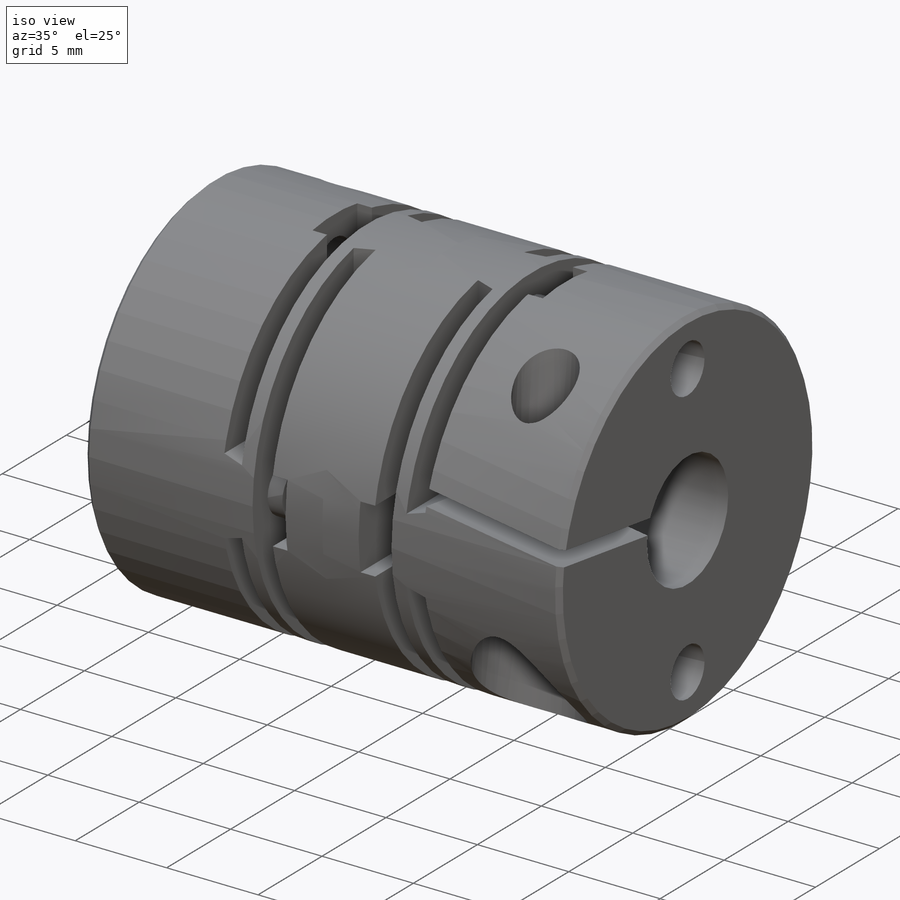
[diagram: iso view]
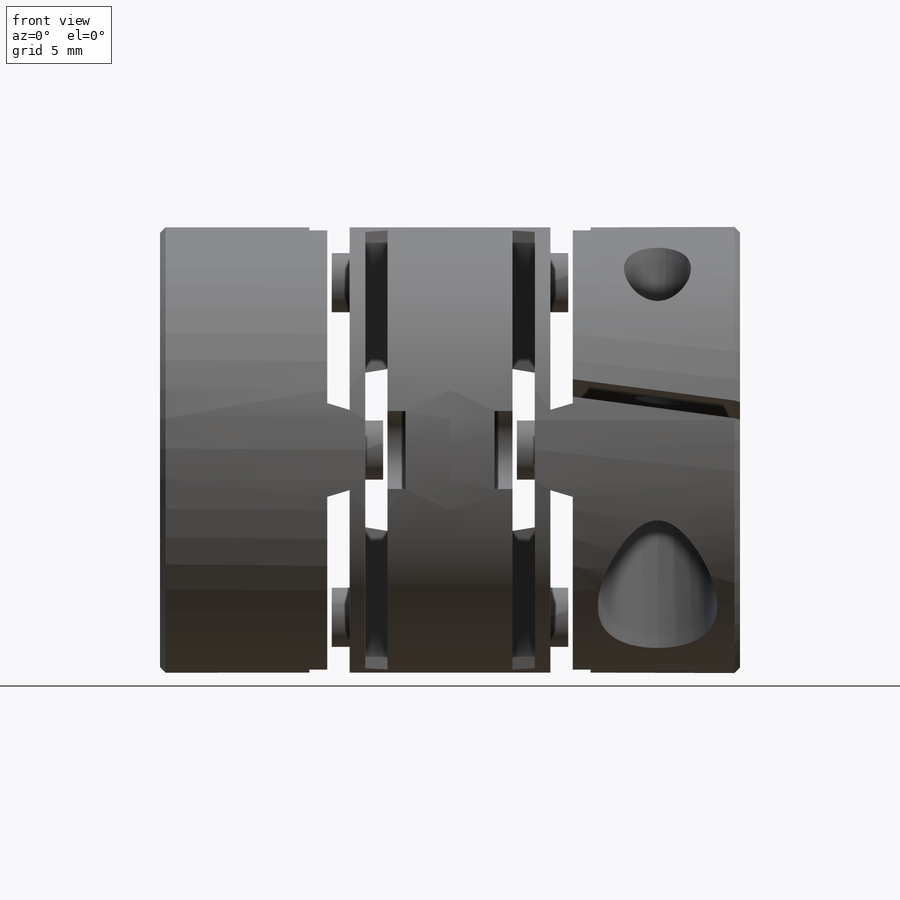
[diagram: front view]
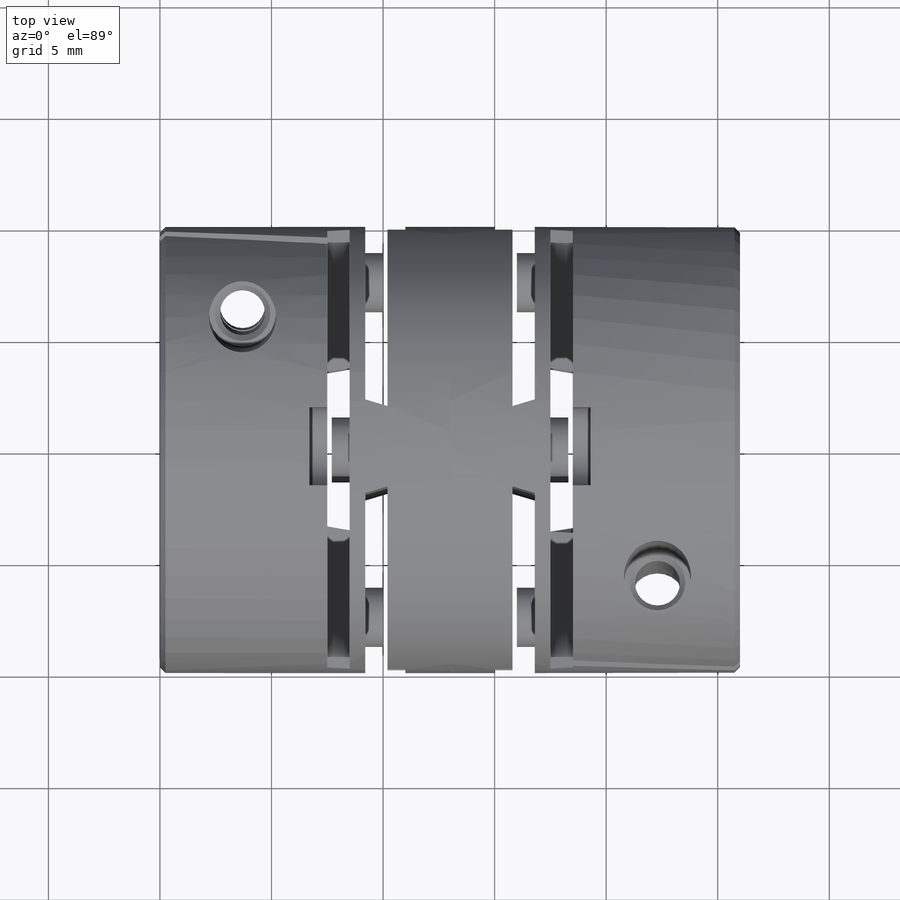
[diagram: top view]
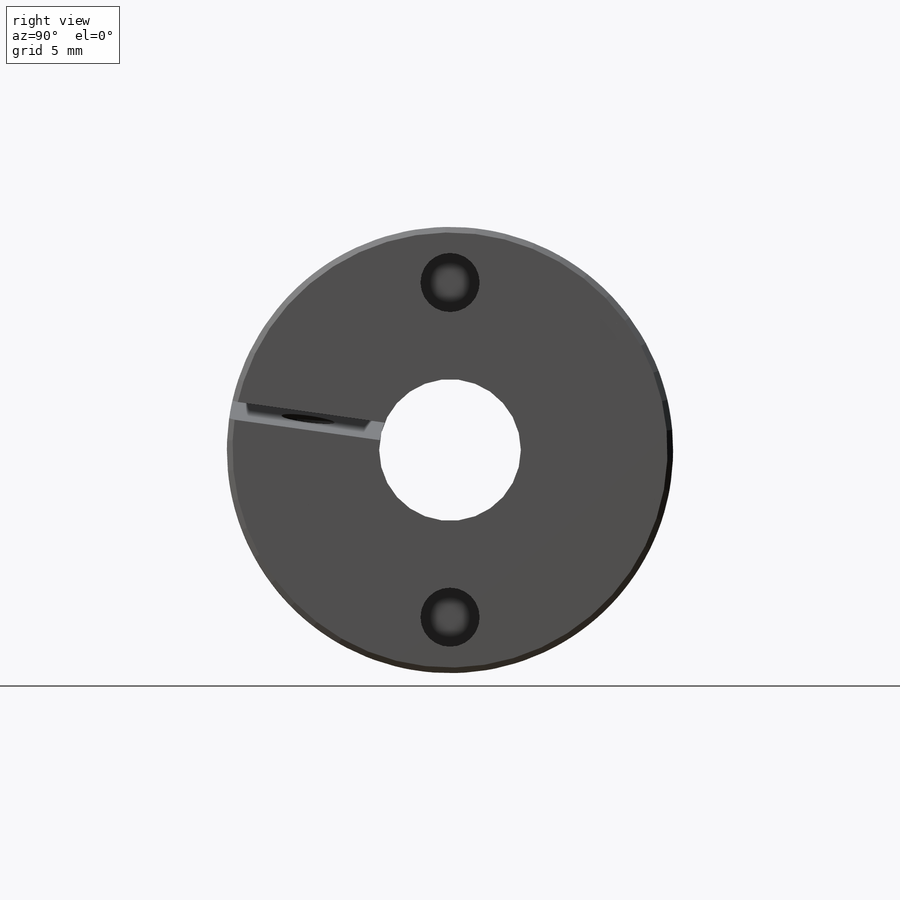
[diagram: right view]
SOLIDWORKS PART (.sldprt)
format: sldprt  version: not decoded by parser v0  size: 519,680 bytes
history: native  units: mm
features: plane x29, sketch x29, cut_extrude x18, extrude x8, cut_revolve x2, material x1, revolve x1 (+16 scaffold rows collapsed)
feature tree (104):
  scaffold x16  (default folders/planes/origin — collapsed)
  material  "Material <not specified>"
  plane  "Plane1"
  sketch  "Sketch1"
  revolve  "Revolve1"  Angle=360deg
  plane  "Plane2"
  sketch  "Sketch2"
  cut_extrude  "Cut-Extrude1"  Depth=10mm
  plane  "Plane3"
  sketch  "Sketch3"
  cut_extrude  "Cut-Extrude2"  Depth=10mm
  plane  "Plane4"
  sketch  "Sketch4"
  cut_revolve  "Cut-Revolve1"  Angle=360deg
  plane  "Plane5"
  sketch  "Sketch5"
  cut_revolve  "Cut-Revolve2"  Angle=360deg
  plane  "Plane6"
  sketch  "Sketch6"
  cut_extrude  "Cut-Extrude3"  Depth=10mm
  plane  "Plane7"
  sketch  "Sketch7"
  cut_extrude  "Cut-Extrude4"  Depth=10mm
  plane  "Plane8"
  sketch  "Sketch8"
  cut_extrude  "Cut-Extrude5"  Depth=10mm
  plane  "Plane9"
  sketch  "Sketch9"
  cut_extrude  "Cut-Extrude6"  Depth=10mm
  plane  "Plane10"
  sketch  "Sketch10"
  cut_extrude  "Cut-Extrude7"  Depth=0.8mm
  plane  "Plane11"
  sketch  "Sketch11"
  cut_extrude  "Cut-Extrude8"  Depth=0.8mm
  plane  "Plane12"
  sketch  "Sketch12"
  cut_extrude  "Cut-Extrude9"  Depth=0.8mm
  plane  "Plane13"
  sketch  "Sketch13"
  cut_extrude  "Cut-Extrude10"  Depth=0.8mm
  plane  "Plane14"
  sketch  "Sketch14"
  cut_extrude  "Cut-Extrude11"  Depth=0.8mm
  plane  "Plane15"
  sketch  "Sketch15"
  cut_extrude  "Cut-Extrude12"  Depth=0.8mm
  plane  "Plane16"
  sketch  "Sketch16"
  cut_extrude  "Cut-Extrude13"  Depth=0.8mm
  plane  "Plane17"
  sketch  "Sketch17"
  cut_extrude  "Cut-Extrude14"  Depth=0.8mm
  plane  "Plane18"
  sketch  "Sketch18"
  extrude  "Boss-Extrude1"  Depth=0.8mm
  plane  "Plane19"
  sketch  "Sketch19"
  extrude  "Boss-Extrude2"  Depth=0.8mm
  plane  "Plane20"
  sketch  "Sketch20"
  extrude  "Boss-Extrude3"  Depth=0.8mm
  plane  "Plane21"
  sketch  "Sketch21"
  extrude  "Boss-Extrude4"  Depth=0.8mm
  plane  "Plane22"
  sketch  "Sketch22"
  extrude  "Boss-Extrude5"  Depth=0.8mm
  plane  "Plane23"
  sketch  "Sketch23"
  extrude  "Boss-Extrude6"  Depth=0.8mm
  plane  "Plane24"
  sketch  "Sketch24"
  extrude  "Boss-Extrude7"  Depth=0.8mm
  plane  "Plane25"
  sketch  "Sketch25"
  extrude  "Boss-Extrude8"  Depth=0.8mm
  plane  "Plane26"
  sketch  "Sketch26"
  cut_extrude  "Cut-Extrude15"  Depth=7.5mm
  plane  "Plane27"
  sketch  "Sketch27"
  cut_extrude  "Cut-Extrude16"  Depth=7.5mm
  plane  "Plane28"
  sketch  "Sketch28"
  cut_extrude  "Cut-Extrude17"  Depth=7.5mm
  plane  "Plane29"
  sketch  "Sketch29"
  cut_extrude  "Cut-Extrude18"  Depth=7.5mm
decode coverage: 29 of 58 modeling features carry decoded parameters
note: suppression state not decoded; provenance and decode notes live in map.json
